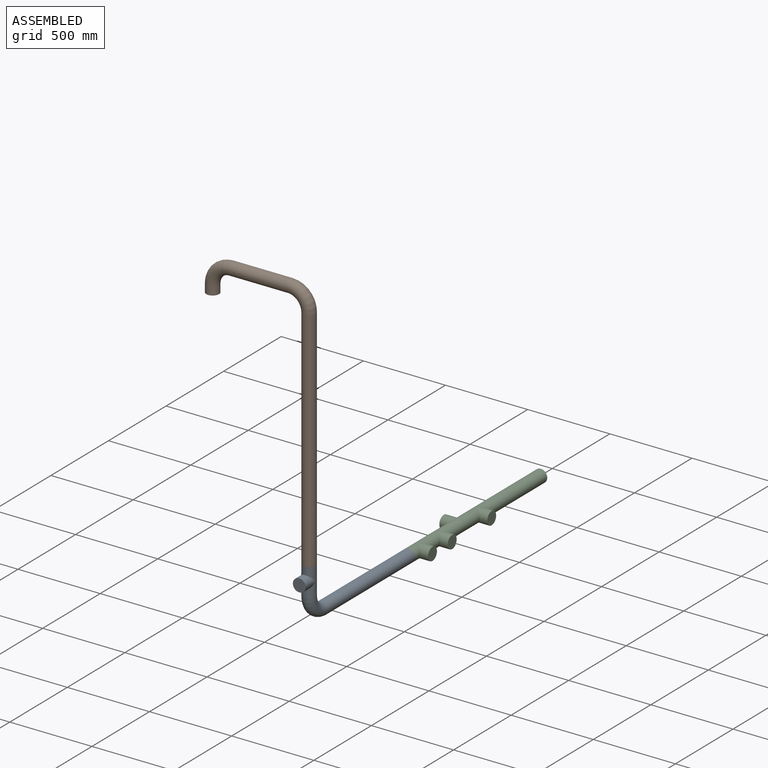
[diagram: assembled view]
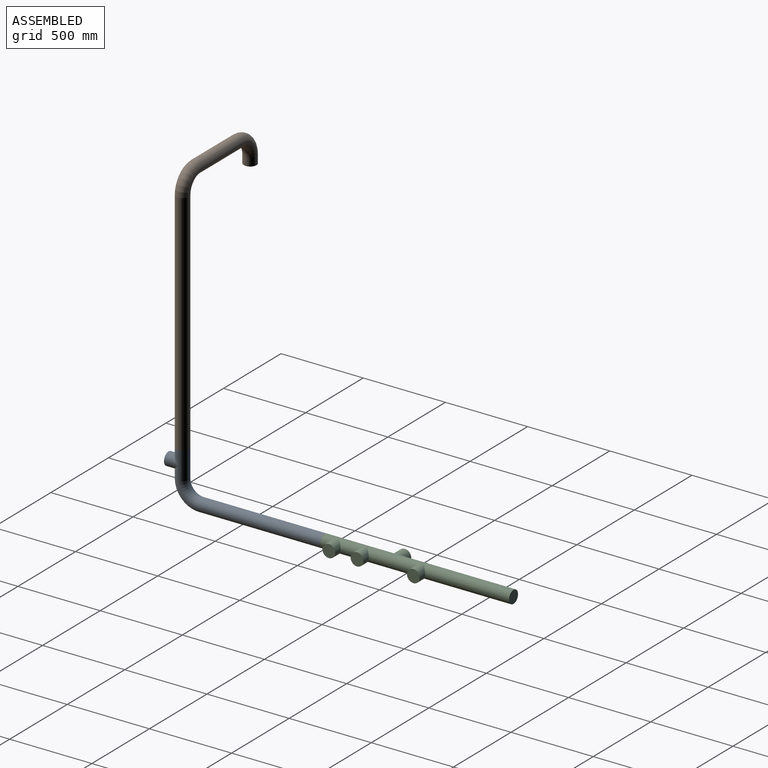
[diagram: assembled view, second angle]
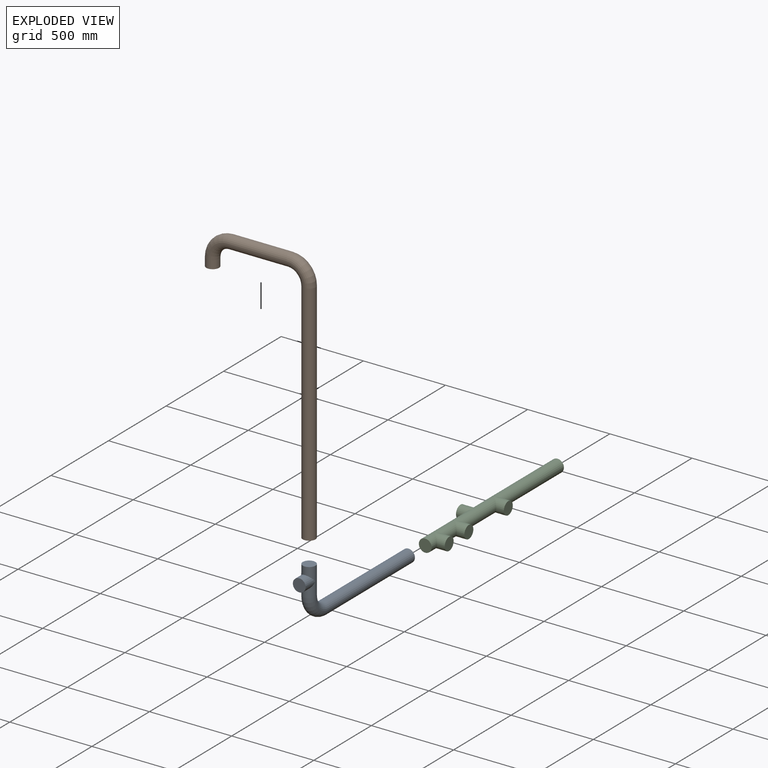
[diagram: exploded view]
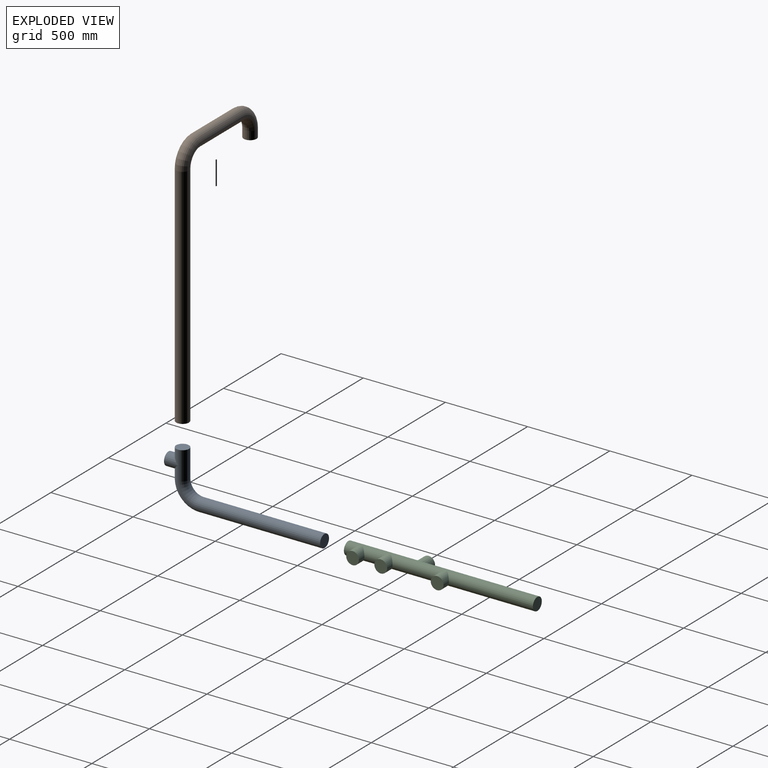
[diagram: exploded view, second angle]
ASSEMBLY  parts=3 mates=2
PART A: 7 faces, bbox 77.9x949.7x337 mm
  f0: plane 77.9x77.9mm, normal (0,0,1), area 4766.1mm2, adj f2
  f1: plane 77.9x77.9mm, normal (0,1,0), area 4766.1mm2, adj f4
  f2: cylinder r=38.95mm len=171.4mm, axis (0,0,-1), area 35878.3mm2, adj f0,f3,f6
  f3: torus R=114mm, axis (1,0,0), area 43824mm2, adj f2,f4
  f4: cylinder r=38.95mm len=750mm, axis (0,1,0), area 183547.6mm2, adj f1,f3
  f5: plane 77.9x77.9mm, normal (0,-1,0), area 4766.1mm2, adj f6
  f6: cylinder r=38.95mm len=85.7mm, axis (0,-1,0), area 14905mm2, adj f2,f5
PART B: 7 faces, bbox 690.1x77.9x1551.6 mm
  f0: plane 77.9x77.9mm, normal (0,0,-1), area 4766.1mm2, adj f2
  f1: plane 77.9x77.9mm, normal (0,0,-1), area 4766.1mm2, adj f6
  f2: cylinder r=38.95mm len=77.9mm, axis (0,0,1), area 12236.5mm2, adj f0,f3
  f3: torus R=114mm, axis (0,1,0), area 43824mm2, adj f2,f4
  f4: cylinder r=38.95mm len=359mm, axis (1,0,0), area 87858.1mm2, adj f3,f5
  f5: torus R=114mm, axis (0,1,0), area 43824mm2, adj f4,f6
  f6: cylinder r=38.95mm len=1386mm, axis (0,0,-1), area 339195.9mm2, adj f1,f5
PART C: 11 faces, bbox 171.4x1149.9x77.9 mm
  f0: plane 77.9x77.9mm, normal (0,-1,0), area 4766.1mm2, adj f2
  f1: plane 77.9x77.9mm, normal (0,1,0), area 4766.1mm2, adj f2
  f2: cylinder r=38.95mm len=1149.9mm, axis (0,1,0), area 257141.5mm2, adj f0,f1,f4,f6,f8,f10
  f3: plane 77.9x77.9mm, normal (1,0,0), area 4766.1mm2, adj f4
  f4: cylinder r=38.95mm len=85.7mm, axis (1,0,0), area 14905mm2, adj f2,f3
  f5: plane 77.9x77.9mm, normal (1,0,0), area 4766.1mm2, adj f6
  f6: cylinder r=38.95mm len=85.7mm, axis (1,0,0), area 14905mm2, adj f2,f5
  f7: plane 77.9x77.9mm, normal (-1,0,0), area 4766.1mm2, adj f8
  f8: cylinder r=38.95mm len=85.7mm, axis (-1,0,0), area 14905mm2, adj f2,f7
  f9: plane 77.9x77.9mm, normal (1,0,0), area 4766.1mm2, adj f10
  f10: cylinder r=38.95mm len=85.7mm, axis (1,0,0), area 14905mm2, adj f2,f9
PLACE A t=(-255,-676.8,-1309.66)mm
PLACE B t=(-842,-676.8,26.34)mm
PLACE C t=(-255,187.2,-1595.06)mm
MATE cylindrical A.f2 <-> B.f6  axis (0,0,1) through (-255,-676.8,-1309.66)mm
MATE cylindrical C.f2 <-> A.f4  axis (0,-1,0) through (-255,187.2,-1595.06)mm
